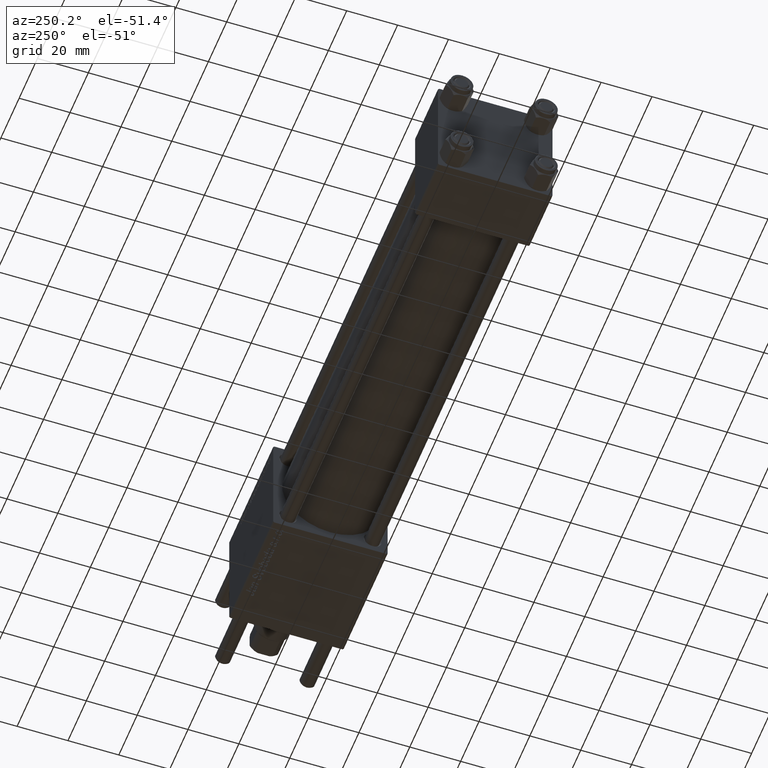
[diagram: clean part render]
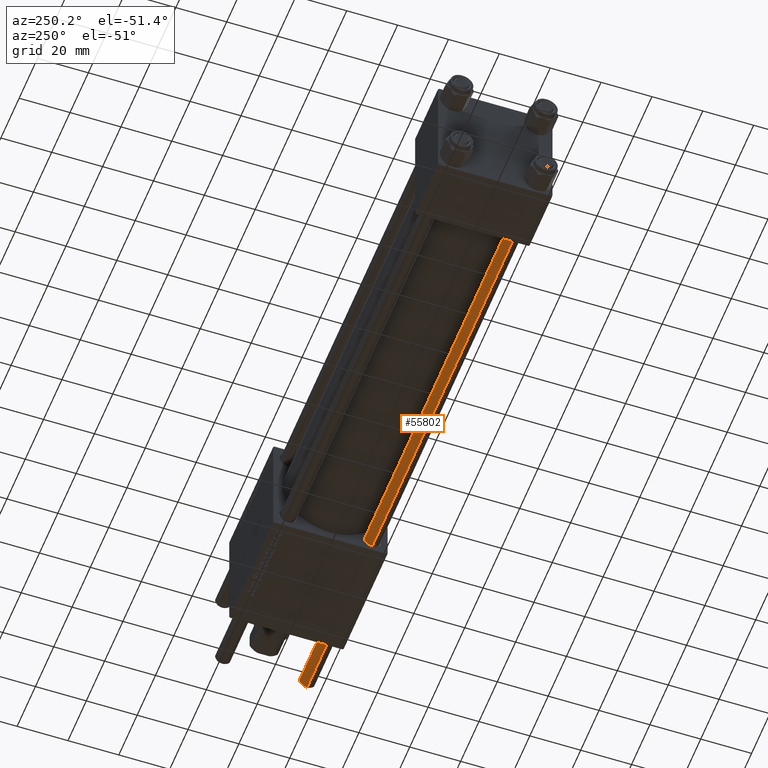
[diagram: same view with one face highlighted and labeled with its STEP entity id]
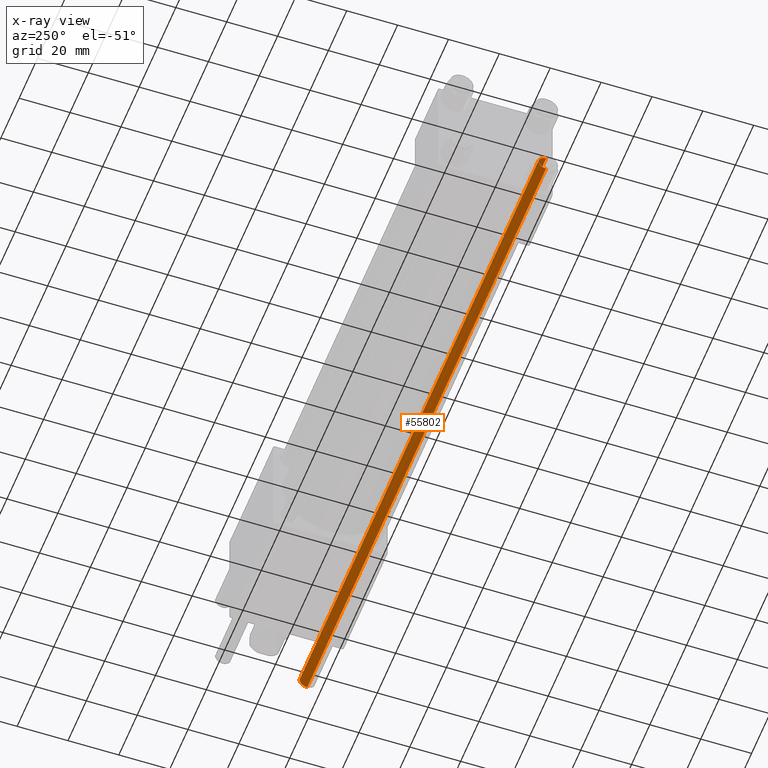
[diagram: x-ray of the same camera — body ghosted, the highlighted face saturated]
A machine part, auxiliary view. The second image highlights one B-rep face of the part: STEP entity #55802.
The next image is the same camera in x-ray: the body ghosted, the highlighted face saturated — about 0% of this face is hidden behind the body in this view.
In plain terms, the highlighted cylindrical surface (edge-blend (fillet) strip) has radius 3 mm, axis along (1, 0, 0).
Its self-contained STEP definition (entity closure, byte-faithful):
#744 = FACE_OUTER_BOUND ( 'NONE', #53189, .T. ) ;
#3274 = DIRECTION ( 'NONE',  ( 0.000000000000000000, 0.000000000000000000, -1.000000000000000000 ) ) ;
#4812 = VECTOR ( 'NONE', #45456, 1000.000000000000000 ) ;
#6466 = ORIENTED_EDGE ( 'NONE', *, *, #47249, .T. ) ;
#6956 = VERTEX_POINT ( 'NONE', #44890 ) ;
#8558 = DIRECTION ( 'NONE',  ( -0.000000000000000000, -0.000000000000000000, -1.000000000000000000 ) ) ;
#9015 = CARTESIAN_POINT ( 'NONE',  ( -3.000000000000000444, 0.000000000000000000, 0.5000000000000004441 ) ) ;
#9047 = EDGE_CURVE ( 'NONE', #6956, #31669, #50885, .T. ) ;
#9092 = CARTESIAN_POINT ( 'NONE',  ( 0.000000000000000000, 0.000000000000000000, 262.0000000000000000 ) ) ;
#12071 = CIRCLE ( 'NONE', #38696, 3.000000000000000444 ) ;
#12124 = AXIS2_PLACEMENT_3D ( 'NONE', #20277, #3274, #28869 ) ;
#14751 = VERTEX_POINT ( 'NONE', #51194 ) ;
#20277 = CARTESIAN_POINT ( 'NONE',  ( 0.000000000000000000, 0.000000000000000000, 261.5000000000000568 ) ) ;
#20682 = CARTESIAN_POINT ( 'NONE',  ( 3.000000000000000444, 3.673940397442060361E-16, 0.5000000000000004441 ) ) ;
#25762 = LINE ( 'NONE', #47924, #42003 ) ;
#27356 = ORIENTED_EDGE ( 'NONE', *, *, #9047, .F. ) ;
#27737 = DIRECTION ( 'NONE',  ( -0.000000000000000000, -0.000000000000000000, -1.000000000000000000 ) ) ;
#27895 = CARTESIAN_POINT ( 'NONE',  ( 3.000000000000000444, 3.673940397442060361E-16, 262.0000000000000000 ) ) ;
#28019 = CARTESIAN_POINT ( 'NONE',  ( 0.000000000000000000, 0.000000000000000000, 0.5000000000000004441 ) ) ;
#28869 = DIRECTION ( 'NONE',  ( 1.000000000000000000, 0.000000000000000000, 0.000000000000000000 ) ) ;
#29328 = EDGE_CURVE ( 'NONE', #14751, #47882, #25762, .T. ) ;
#31669 = VERTEX_POINT ( 'NONE', #20682 ) ;
#34899 = AXIS2_PLACEMENT_3D ( 'NONE', #9092, #27737, #44722 ) ;
#35796 = CYLINDRICAL_SURFACE ( 'NONE', #34899, 3.000000000000000444 ) ;
#36643 = DIRECTION ( 'NONE',  ( 1.000000000000000000, 0.000000000000000000, 0.000000000000000000 ) ) ;
#37152 = ORIENTED_EDGE ( 'NONE', *, *, #29328, .T. ) ;
#38696 = AXIS2_PLACEMENT_3D ( 'NONE', #28019, #49891, #36643 ) ;
#42003 = VECTOR ( 'NONE', #8558, 1000.000000000000000 ) ;
#44606 = ORIENTED_EDGE ( 'NONE', *, *, #48494, .T. ) ;
#44722 = DIRECTION ( 'NONE',  ( -1.000000000000000000, 0.000000000000000000, 0.000000000000000000 ) ) ;
#44890 = CARTESIAN_POINT ( 'NONE',  ( 3.000000000000000444, 3.673940397442060361E-16, 261.5000000000000568 ) ) ;
#45456 = DIRECTION ( 'NONE',  ( -0.000000000000000000, -0.000000000000000000, -1.000000000000000000 ) ) ;
#47249 = EDGE_CURVE ( 'NONE', #47882, #31669, #12071, .T. ) ;
#47882 = VERTEX_POINT ( 'NONE', #9015 ) ;
#47924 = CARTESIAN_POINT ( 'NONE',  ( -3.000000000000000444, 0.000000000000000000, 262.0000000000000000 ) ) ;
#48494 = EDGE_CURVE ( 'NONE', #6956, #14751, #54329, .T. ) ;
#49891 = DIRECTION ( 'NONE',  ( -0.000000000000000000, -0.000000000000000000, 1.000000000000000000 ) ) ;
#50885 = LINE ( 'NONE', #27895, #4812 ) ;
#51194 = CARTESIAN_POINT ( 'NONE',  ( -3.000000000000000444, 0.000000000000000000, 261.5000000000000568 ) ) ;
#53189 = EDGE_LOOP ( 'NONE', ( #27356, #44606, #37152, #6466 ) ) ;
#54329 = CIRCLE ( 'NONE', #12124, 3.000000000000000444 ) ;
#55802 = ADVANCED_FACE ( 'NONE', ( #744 ), #35796, .T. ) ;